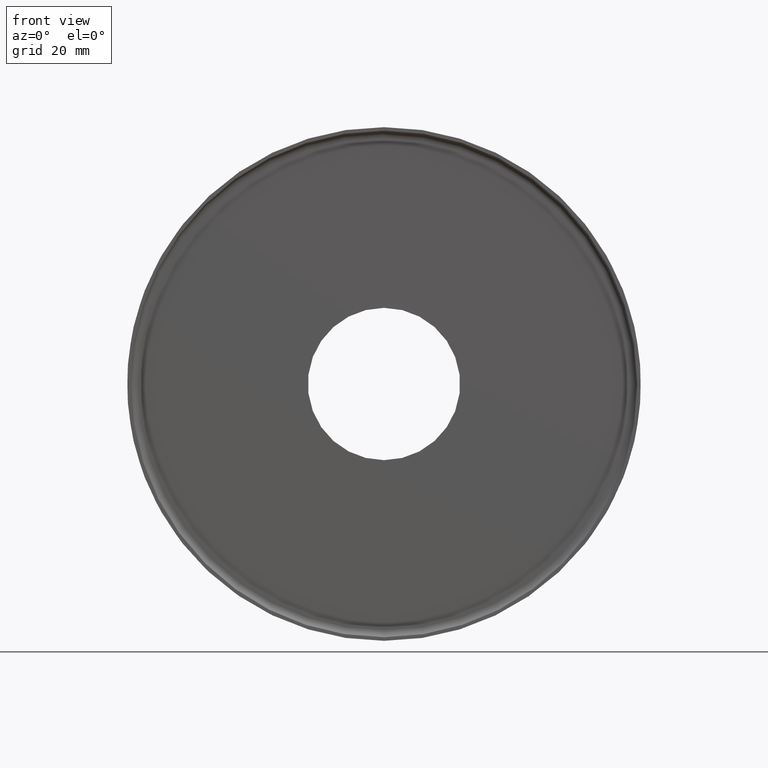
[diagram: clean part render]
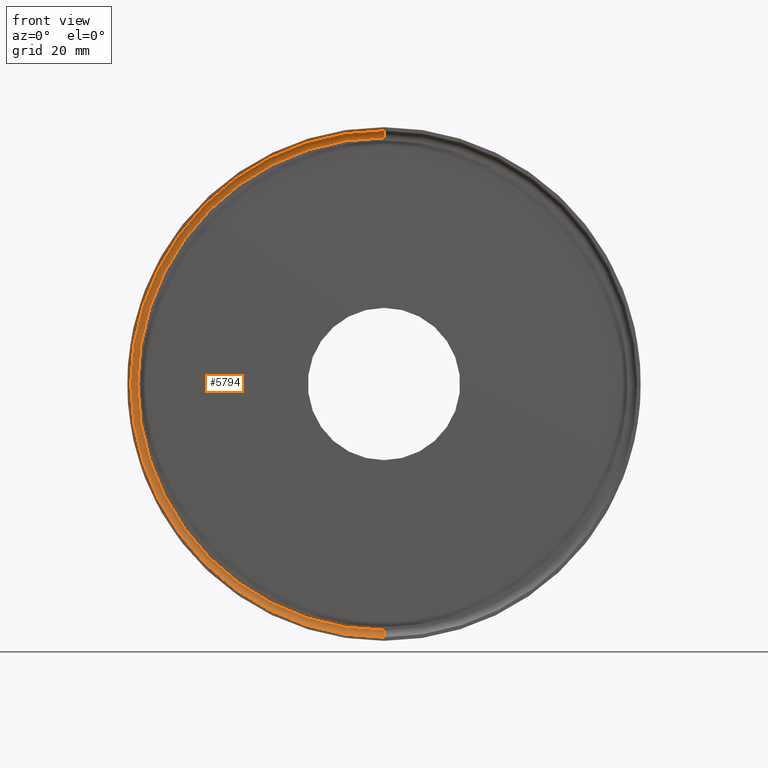
[diagram: same view with one face highlighted and labeled with its STEP entity id]
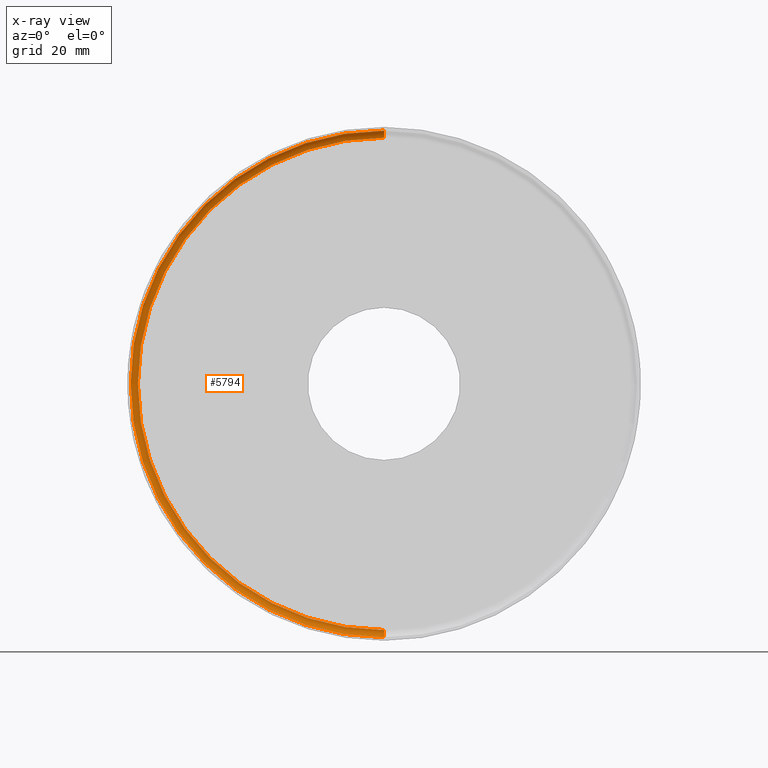
[diagram: x-ray of the same camera — body ghosted, the highlighted face saturated]
A machine part, front view. The second image highlights one B-rep face of the part: STEP entity #5794.
The next image is the same camera in x-ray: the body ghosted, the highlighted face saturated — about 0% of this face is hidden behind the body in this view.
In plain terms, the highlighted toroidal blend (fillet) surface has major radius 69.5 mm and minor (blend) radius 2 mm.
Its self-contained STEP definition (entity closure, byte-faithful):
#373 = CARTESIAN_POINT ( 'NONE',  ( 8.511295254074103841E-15, 22.00000000000000355, 69.49999999999998579 ) ) ;
#571 = CIRCLE ( 'NONE', #1589, 71.50000000000000000 ) ;
#623 = VERTEX_POINT ( 'NONE', #10313 ) ;
#1173 = AXIS2_PLACEMENT_3D ( 'NONE', #11087, #12363, #3165 ) ;
#1589 = AXIS2_PLACEMENT_3D ( 'NONE', #14833, #15900, #9694 ) ;
#1739 = CIRCLE ( 'NONE', #1173, 69.49999999999998579 ) ;
#2101 = ORIENTED_EDGE ( 'NONE', *, *, #12333, .F. ) ;
#3165 = DIRECTION ( 'NONE',  ( 0.000000000000000000, 0.000000000000000000, -1.000000000000000000 ) ) ;
#3538 = AXIS2_PLACEMENT_3D ( 'NONE', #6169, #16778, #5255 ) ;
#3556 = ORIENTED_EDGE ( 'NONE', *, *, #8657, .T. ) ;
#3956 = EDGE_CURVE ( 'NONE', #13913, #13672, #13556, .T. ) ;
#4456 = DIRECTION ( 'NONE',  ( -1.224646799147349509E-16, 0.000000000000000000, -1.000000000000000000 ) ) ;
#4996 = DIRECTION ( 'NONE',  ( 0.000000000000000000, 0.000000000000000000, 1.000000000000000000 ) ) ;
#5255 = DIRECTION ( 'NONE',  ( 0.000000000000000000, 0.000000000000000000, -1.000000000000000000 ) ) ;
#5794 = ADVANCED_FACE ( 'NONE', ( #11137 ), #10723, .F. ) ;
#6169 = CARTESIAN_POINT ( 'NONE',  ( 0.000000000000000000, 22.00000000000000355, 0.000000000000000000 ) ) ;
#7517 = CARTESIAN_POINT ( 'NONE',  ( 8.756224613903574137E-15, 22.00000000000000355, 71.50000000000000000 ) ) ;
#7768 = EDGE_CURVE ( 'NONE', #623, #12772, #13104, .T. ) ;
#8657 = EDGE_CURVE ( 'NONE', #13672, #12772, #571, .T. ) ;
#9694 = DIRECTION ( 'NONE',  ( 0.000000000000000000, 0.000000000000000000, -1.000000000000000000 ) ) ;
#10153 = ORIENTED_EDGE ( 'NONE', *, *, #3956, .T. ) ;
#10313 = CARTESIAN_POINT ( 'NONE',  ( 0.000000000000000000, 24.00000000000000000, -69.49999999999998579 ) ) ;
#10723 = TOROIDAL_SURFACE ( 'NONE', #3538, 69.49999999999998579, 2.000000000000000000 ) ;
#10837 = CARTESIAN_POINT ( 'NONE',  ( 0.000000000000000000, 22.00000000000000355, -71.50000000000000000 ) ) ;
#11087 = CARTESIAN_POINT ( 'NONE',  ( 0.000000000000000000, 24.00000000000000000, 0.000000000000000000 ) ) ;
#11137 = FACE_OUTER_BOUND ( 'NONE', #14681, .T. ) ;
#12333 = EDGE_CURVE ( 'NONE', #13913, #623, #1739, .T. ) ;
#12363 = DIRECTION ( 'NONE',  ( -0.000000000000000000, -1.000000000000000000, -0.000000000000000000 ) ) ;
#12717 = DIRECTION ( 'NONE',  ( -1.000000000000000000, 0.000000000000000000, 0.000000000000000000 ) ) ;
#12772 = VERTEX_POINT ( 'NONE', #10837 ) ;
#13104 = CIRCLE ( 'NONE', #16661, 2.000000000000001776 ) ;
#13421 = CARTESIAN_POINT ( 'NONE',  ( 8.633759933988838989E-15, 24.00000000000000000, 69.49999999999998579 ) ) ;
#13439 = DIRECTION ( 'NONE',  ( 1.000000000000000000, 0.000000000000000000, -1.224646799147353207E-16 ) ) ;
#13503 = ORIENTED_EDGE ( 'NONE', *, *, #7768, .F. ) ;
#13556 = CIRCLE ( 'NONE', #15446, 2.000000000000001776 ) ;
#13672 = VERTEX_POINT ( 'NONE', #7517 ) ;
#13913 = VERTEX_POINT ( 'NONE', #13421 ) ;
#14681 = EDGE_LOOP ( 'NONE', ( #2101, #10153, #3556, #13503 ) ) ;
#14833 = CARTESIAN_POINT ( 'NONE',  ( 0.000000000000000000, 22.00000000000000355, 0.000000000000000000 ) ) ;
#15446 = AXIS2_PLACEMENT_3D ( 'NONE', #373, #13439, #4456 ) ;
#15900 = DIRECTION ( 'NONE',  ( -0.000000000000000000, -1.000000000000000000, -0.000000000000000000 ) ) ;
#16463 = CARTESIAN_POINT ( 'NONE',  ( 0.000000000000000000, 22.00000000000000355, -69.49999999999998579 ) ) ;
#16661 = AXIS2_PLACEMENT_3D ( 'NONE', #16463, #12717, #4996 ) ;
#16778 = DIRECTION ( 'NONE',  ( -0.000000000000000000, -1.000000000000000000, -0.000000000000000000 ) ) ;